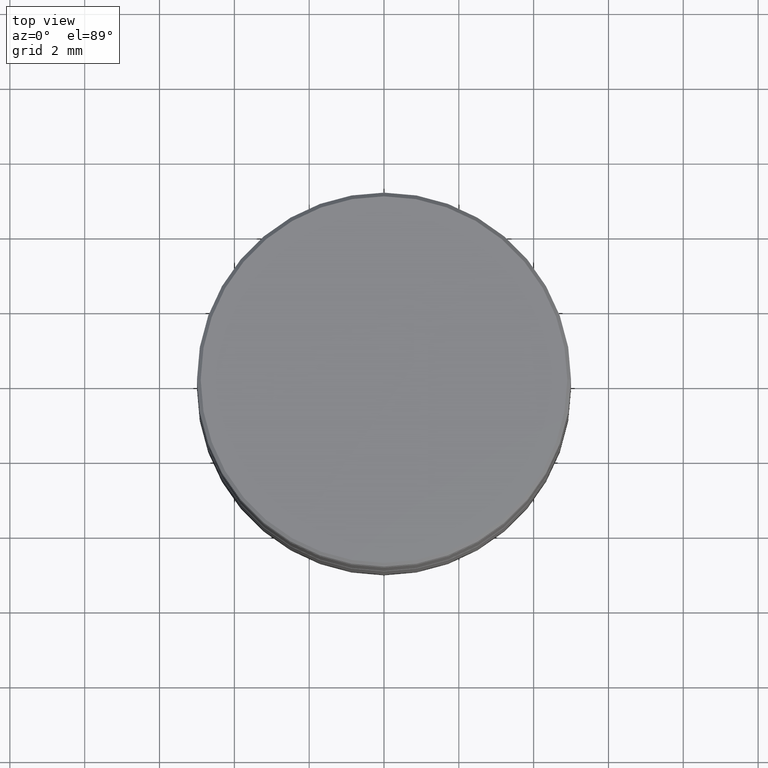
[diagram: clean part render]
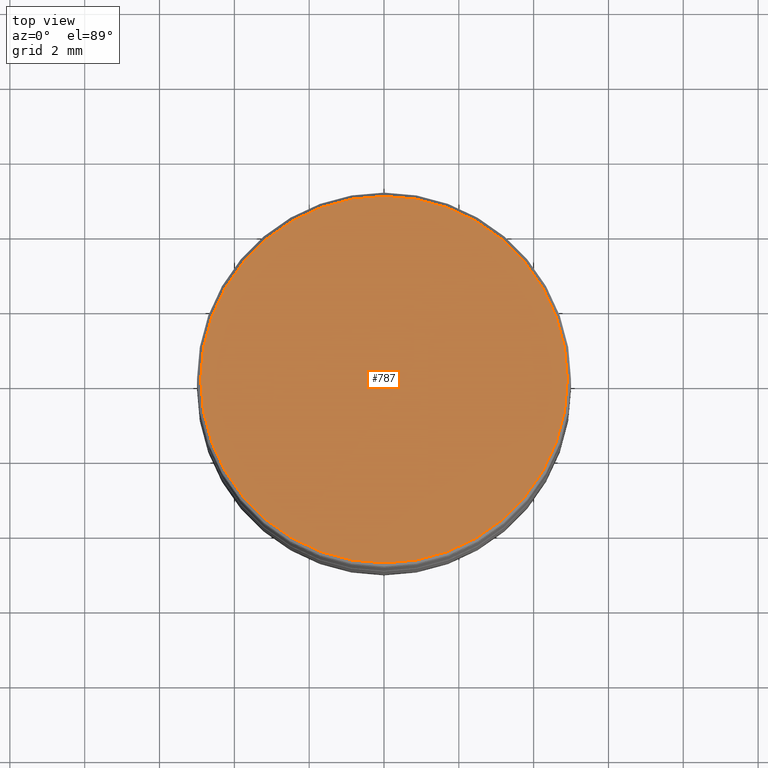
[diagram: same view with one face highlighted and labeled with its STEP entity id]
A machine part, top view. The second image highlights one B-rep face of the part: STEP entity #787.
In plain terms, the highlighted planar face has unit normal (0, -0, 1).
Its self-contained STEP definition (entity closure, byte-faithful):
#34 = EDGE_LOOP ( 'NONE', ( #1158, #1134 ) ) ;
#114 = PLANE ( 'NONE',  #1142 ) ;
#202 = FACE_OUTER_BOUND ( 'NONE', #34, .T. ) ;
#252 = CARTESIAN_POINT ( 'NONE',  ( 0.000000000000000000, 0.000000000000000000, 0.000000000000000000 ) ) ;
#260 = DIRECTION ( 'NONE',  ( -0.000000000000000000, -0.000000000000000000, 1.000000000000000000 ) ) ;
#308 = CIRCLE ( 'NONE', #1068, 4.900000000000001243 ) ;
#309 = VERTEX_POINT ( 'NONE', #1042 ) ;
#423 = VERTEX_POINT ( 'NONE', #664 ) ;
#432 = EDGE_CURVE ( 'NONE', #423, #309, #308, .T. ) ;
#444 = DIRECTION ( 'NONE',  ( -0.000000000000000000, -0.000000000000000000, 1.000000000000000000 ) ) ;
#541 = DIRECTION ( 'NONE',  ( 0.000000000000000000, -0.000000000000000000, 1.000000000000000000 ) ) ;
#664 = CARTESIAN_POINT ( 'NONE',  ( -4.900000000000001243, 0.000000000000000000, 0.000000000000000000 ) ) ;
#710 = AXIS2_PLACEMENT_3D ( 'NONE', #252, #444, #872 ) ;
#787 = ADVANCED_FACE ( 'NONE', ( #202 ), #114, .T. ) ;
#865 = CARTESIAN_POINT ( 'NONE',  ( 0.000000000000000000, 0.000000000000000000, 0.000000000000000000 ) ) ;
#872 = DIRECTION ( 'NONE',  ( 1.000000000000000000, 0.000000000000000000, 0.000000000000000000 ) ) ;
#896 = CARTESIAN_POINT ( 'NONE',  ( 0.000000000000000000, 0.000000000000000000, 0.000000000000000000 ) ) ;
#999 = DIRECTION ( 'NONE',  ( 1.000000000000000000, 0.000000000000000000, 0.000000000000000000 ) ) ;
#1001 = EDGE_CURVE ( 'NONE', #309, #423, #1303, .T. ) ;
#1042 = CARTESIAN_POINT ( 'NONE',  ( 4.900000000000001243, 6.062001655779399497E-16, 0.000000000000000000 ) ) ;
#1068 = AXIS2_PLACEMENT_3D ( 'NONE', #896, #260, #999 ) ;
#1134 = ORIENTED_EDGE ( 'NONE', *, *, #1001, .T. ) ;
#1142 = AXIS2_PLACEMENT_3D ( 'NONE', #865, #541, #1385 ) ;
#1158 = ORIENTED_EDGE ( 'NONE', *, *, #432, .T. ) ;
#1303 = CIRCLE ( 'NONE', #710, 4.900000000000001243 ) ;
#1385 = DIRECTION ( 'NONE',  ( 1.000000000000000000, 0.000000000000000000, 0.000000000000000000 ) ) ;